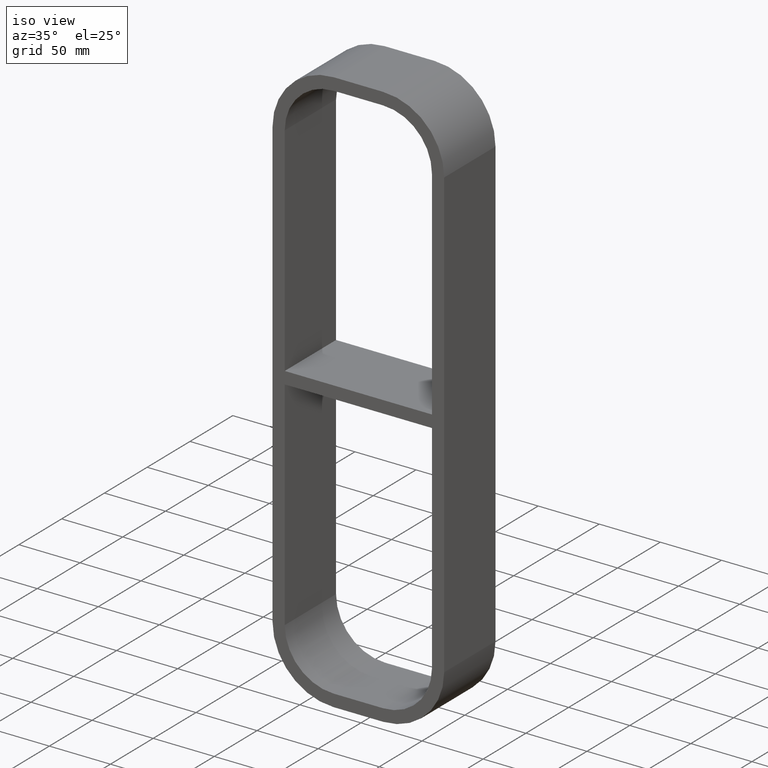
[diagram: clean part render]
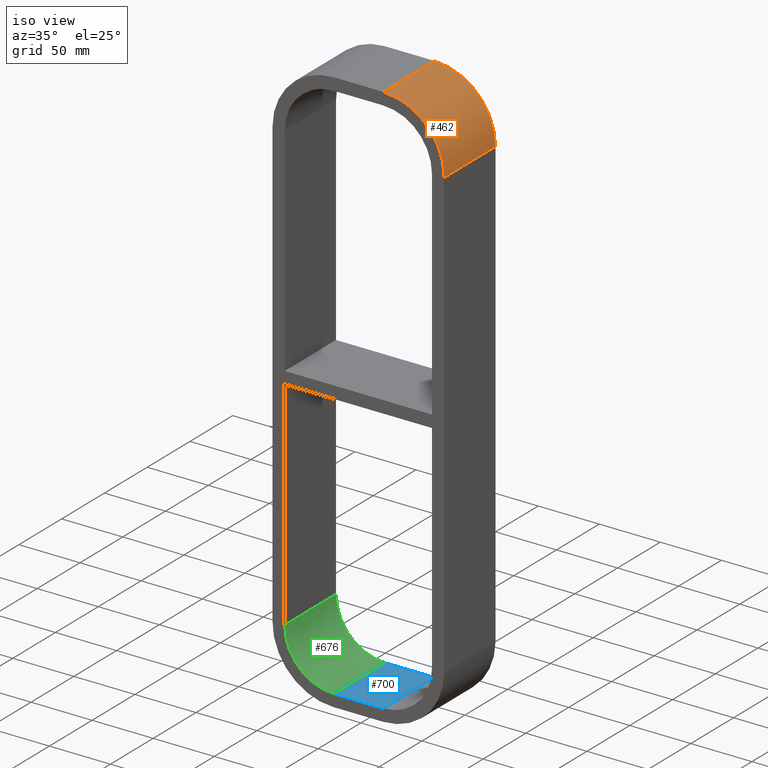
[diagram: same view with three faces highlighted in distinct colors, each labeled with its STEP entity id]
A machine part, iso view with three faces highlighted in distinct colors.
Their STEP definitions:

[orange] entity #462 — the highlighted cylindrical surface (partial cylindrical patch) has radius 50 mm, axis along (0, -1, 0).
#289=CARTESIAN_POINT('',(70.25,-3.0,183.0));
#290=VERTEX_POINT('',#289);
#297=CARTESIAN_POINT('',(20.249999999999993,-3.0,233.0));
#298=VERTEX_POINT('',#297);
#299=CARTESIAN_POINT('',(20.249999999999993,-3.0,183.0));
#300=DIRECTION('',(0.0,1.0,0.0));
#301=DIRECTION('',(0.707106781186547,0.0,0.707106781186547));
#302=AXIS2_PLACEMENT_3D('',#299,#300,#301);
#303=CIRCLE('',#302,49.999999999999986);
#304=EDGE_CURVE('',#298,#290,#303,.T.);
#420=CARTESIAN_POINT('',(70.25,57.0,183.0));
#421=VERTEX_POINT('',#420);
#428=CARTESIAN_POINT('',(70.25,-3.0,183.0));
#429=DIRECTION('',(0.0,1.0,0.0));
#430=VECTOR('',#429,60.0);
#431=LINE('',#428,#430);
#432=EDGE_CURVE('',#290,#421,#431,.T.);
#438=CARTESIAN_POINT('',(20.249999999999993,0.0,183.0));
#439=DIRECTION('',(0.0,-1.0,0.0));
#440=DIRECTION('',(0.707106781186547,0.0,0.707106781186547));
#441=AXIS2_PLACEMENT_3D('',#438,#439,#440);
#442=CYLINDRICAL_SURFACE('',#441,49.999999999999993);
#443=ORIENTED_EDGE('',*,*,#304,.T.);
#444=ORIENTED_EDGE('',*,*,#432,.T.);
#445=CARTESIAN_POINT('',(20.249999999999993,57.0,233.0));
#446=VERTEX_POINT('',#445);
#447=CARTESIAN_POINT('',(20.249999999999993,57.0,183.0));
#448=DIRECTION('',(0.0,-1.0,0.0));
#449=DIRECTION('',(0.707106781186547,0.0,0.707106781186547));
#450=AXIS2_PLACEMENT_3D('',#447,#448,#449);
#451=CIRCLE('',#450,49.999999999999986);
#452=EDGE_CURVE('',#421,#446,#451,.T.);
#453=ORIENTED_EDGE('',*,*,#452,.T.);
#454=CARTESIAN_POINT('',(20.249999999999993,57.0,233.0));
#455=DIRECTION('',(0.0,-1.0,0.0));
#456=VECTOR('',#455,60.0);
#457=LINE('',#454,#456);
#458=EDGE_CURVE('',#446,#298,#457,.T.);
#459=ORIENTED_EDGE('',*,*,#458,.T.);
#460=EDGE_LOOP('',(#443,#444,#453,#459));
#461=FACE_OUTER_BOUND('',#460,.T.);
#462=ADVANCED_FACE('',(#461),#442,.T.);

[blue] entity #700 — the highlighted planar face has unit normal (0, 0, -1).
#379=CARTESIAN_POINT('',(20.250000000000004,-3.0,-222.99999999999997));
#380=VERTEX_POINT('',#379);
#388=CARTESIAN_POINT('',(-20.250000000000007,-3.0,-222.99999999999997));
#389=VERTEX_POINT('',#388);
#390=CARTESIAN_POINT('',(20.250000000000004,-3.0,-222.99999999999997));
#391=DIRECTION('',(-1.0,0.0,0.0));
#392=VECTOR('',#391,40.500000000000014);
#393=LINE('',#390,#392);
#394=EDGE_CURVE('',#380,#389,#393,.T.);
#658=CARTESIAN_POINT('',(-20.250000000000007,57.0,-222.99999999999997));
#659=VERTEX_POINT('',#658);
#660=CARTESIAN_POINT('',(-20.250000000000007,-3.0,-222.99999999999997));
#661=DIRECTION('',(0.0,1.0,0.0));
#662=VECTOR('',#661,60.0);
#663=LINE('',#660,#662);
#664=EDGE_CURVE('',#389,#659,#663,.T.);
#677=CARTESIAN_POINT('',(60.25,0.0,-222.99999999999997));
#678=DIRECTION('',(0.0,0.0,-1.0));
#679=DIRECTION('',(-1.0,0.0,0.0));
#680=AXIS2_PLACEMENT_3D('',#677,#678,#679);
#681=PLANE('',#680);
#682=ORIENTED_EDGE('',*,*,#664,.F.);
#683=ORIENTED_EDGE('',*,*,#394,.F.);
#684=CARTESIAN_POINT('',(20.250000000000004,57.0,-222.99999999999997));
#685=VERTEX_POINT('',#684);
#686=CARTESIAN_POINT('',(20.250000000000004,57.0,-222.99999999999997));
#687=DIRECTION('',(0.0,-1.0,0.0));
#688=VECTOR('',#687,60.0);
#689=LINE('',#686,#688);
#690=EDGE_CURVE('',#685,#380,#689,.T.);
#691=ORIENTED_EDGE('',*,*,#690,.F.);
#692=CARTESIAN_POINT('',(-20.250000000000011,57.0,-222.99999999999997));
#693=DIRECTION('',(1.0,0.0,0.0));
#694=VECTOR('',#693,40.500000000000014);
#695=LINE('',#692,#694);
#696=EDGE_CURVE('',#659,#685,#695,.T.);
#697=ORIENTED_EDGE('',*,*,#696,.F.);
#698=EDGE_LOOP('',(#682,#683,#691,#697));
#699=FACE_OUTER_BOUND('',#698,.T.);
#700=ADVANCED_FACE('',(#699),#681,.F.);

[green] entity #676 — the highlighted cylindrical surface (partial cylindrical patch) has radius 40 mm, axis along (0, 1, 0).
#388=CARTESIAN_POINT('',(-20.250000000000007,-3.0,-222.99999999999997));
#389=VERTEX_POINT('',#388);
#396=CARTESIAN_POINT('',(-60.250000000000014,-3.0,-182.99999999999997));
#397=VERTEX_POINT('',#396);
#398=CARTESIAN_POINT('',(-20.250000000000007,-3.0,-182.99999999999997));
#399=DIRECTION('',(0.0,-1.0,0.0));
#400=DIRECTION('',(-0.707106781186547,0.0,-0.707106781186548));
#401=AXIS2_PLACEMENT_3D('',#398,#399,#400);
#402=CIRCLE('',#401,40.0);
#403=EDGE_CURVE('',#397,#389,#402,.T.);
#593=CARTESIAN_POINT('',(-60.250000000000014,57.0,-182.99999999999997));
#594=VERTEX_POINT('',#593);
#595=CARTESIAN_POINT('',(-60.25,57.0,-182.99999999999997));
#596=DIRECTION('',(0.0,-1.0,0.0));
#597=VECTOR('',#596,60.0);
#598=LINE('',#595,#597);
#599=EDGE_CURVE('',#594,#397,#598,.T.);
#652=CARTESIAN_POINT('',(-20.250000000000007,0.0,-182.99999999999997));
#653=DIRECTION('',(0.0,1.0,0.0));
#654=DIRECTION('',(-0.707106781186547,0.0,-0.707106781186548));
#655=AXIS2_PLACEMENT_3D('',#652,#653,#654);
#656=CYLINDRICAL_SURFACE('',#655,40.0);
#657=ORIENTED_EDGE('',*,*,#403,.T.);
#658=CARTESIAN_POINT('',(-20.250000000000007,57.0,-222.99999999999997));
#659=VERTEX_POINT('',#658);
#660=CARTESIAN_POINT('',(-20.250000000000007,-3.0,-222.99999999999997));
#661=DIRECTION('',(0.0,1.0,0.0));
#662=VECTOR('',#661,60.0);
#663=LINE('',#660,#662);
#664=EDGE_CURVE('',#389,#659,#663,.T.);
#665=ORIENTED_EDGE('',*,*,#664,.T.);
#666=CARTESIAN_POINT('',(-20.250000000000007,57.0,-182.99999999999997));
#667=DIRECTION('',(0.0,1.0,0.0));
#668=DIRECTION('',(-0.707106781186547,0.0,-0.707106781186548));
#669=AXIS2_PLACEMENT_3D('',#666,#667,#668);
#670=CIRCLE('',#669,40.0);
#671=EDGE_CURVE('',#659,#594,#670,.T.);
#672=ORIENTED_EDGE('',*,*,#671,.T.);
#673=ORIENTED_EDGE('',*,*,#599,.T.);
#674=EDGE_LOOP('',(#657,#665,#672,#673));
#675=FACE_OUTER_BOUND('',#674,.T.);
#676=ADVANCED_FACE('',(#675),#656,.F.);